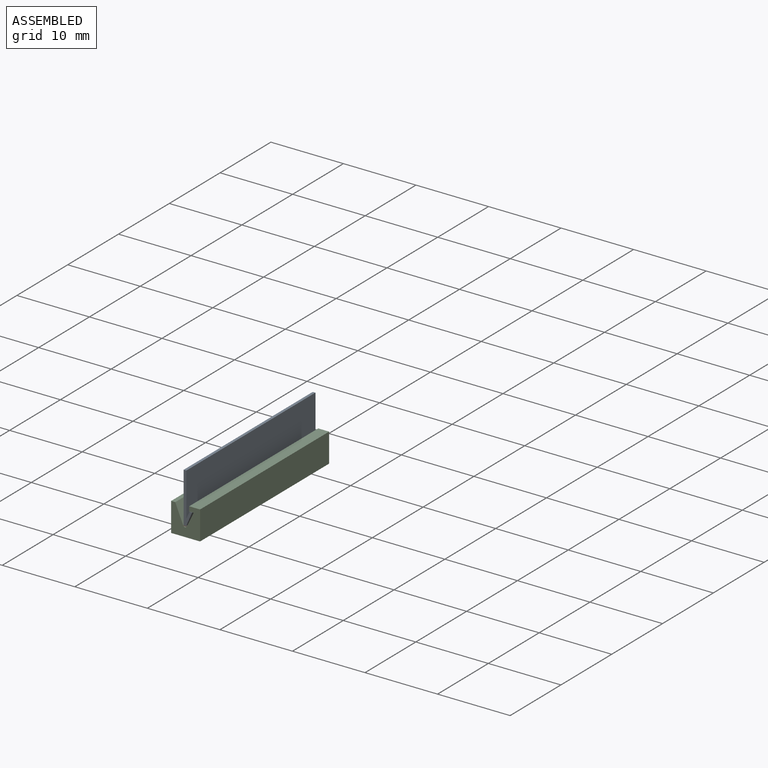
[diagram: assembled view]
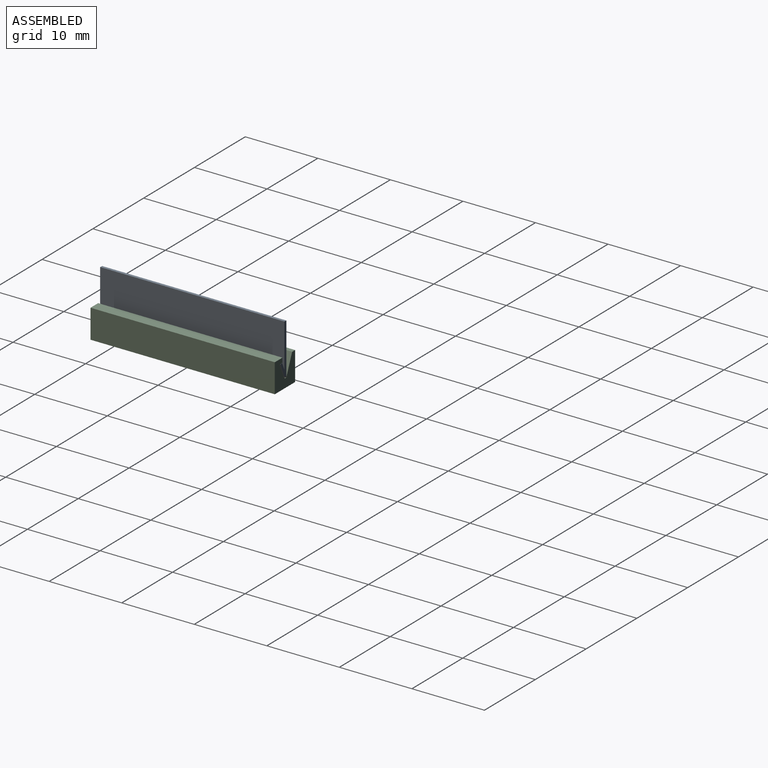
[diagram: assembled view, second angle]
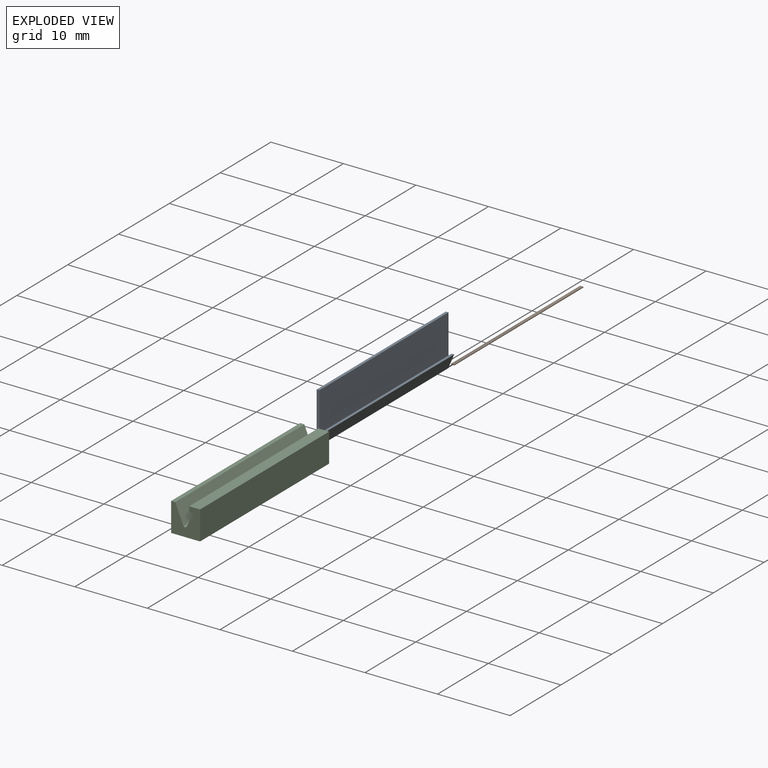
[diagram: exploded view]
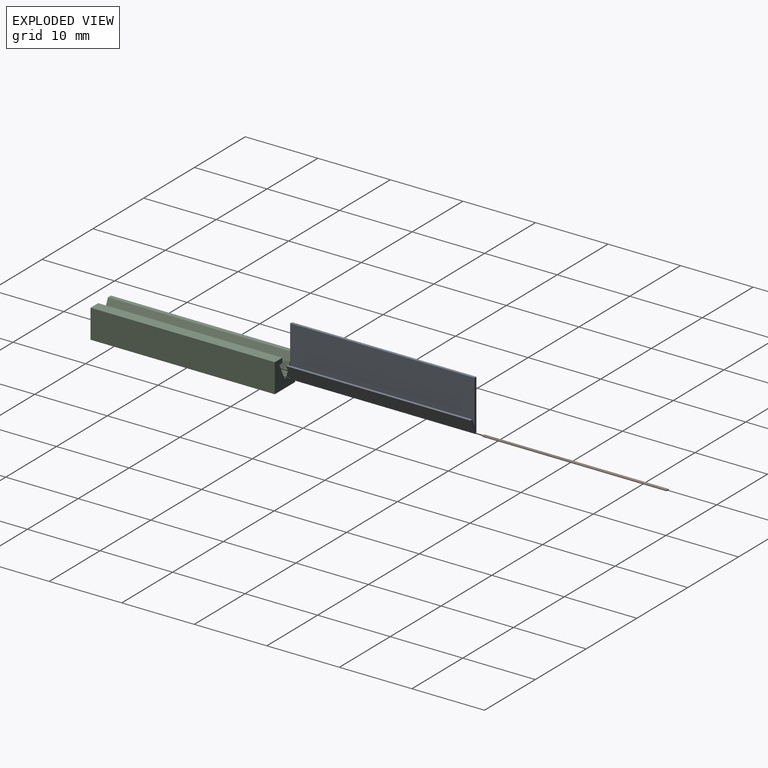
[diagram: exploded view, second angle]
ASSEMBLY  parts=3 mates=2
PART A: 9 faces, bbox 1.2x25.4x7 mm
  f0: plane 25.4x1.84mm, normal (0.92,0,-0.39), area 50.8mm2, adj f1,f6,f7,f8
  f1: plane 25.4x0.36mm, normal (0,0,1), area 9.3mm2, adj f0,f2,f7,f8
  f2: plane 25.4x0.96mm, normal (-0.92,0,0.4), area 26.7mm2, adj f1,f3,f7,f8
  f3: plane 25.4x5.99mm, normal (1,0,0), area 152.3mm2, adj f2,f4,f7,f8
  f4: plane 25.4x0.39mm, normal (-0.04,0,1), area 9.9mm2, adj f3,f5,f7,f8
  f5: plane 25.4x6.83mm, normal (-1,0,0), area 173.6mm2, adj f4,f6,f7,f8
  f6: cylinder r=0.2mm len=25.4mm, axis (0,1,0), area 15.1mm2, adj f0,f5,f7,f8
  f7: plane 7.05x1.18mm, normal (0,-1,0), area 3.3mm2, adj f0,f1,f2,f3,f4,f5,f6
  f8: plane 7.05x1.18mm, normal (0,1,0), area 3.3mm2, adj f0,f1,f2,f3,f4,f5,f6
PART B: 6 faces, bbox 0.4x25.4x0.1 mm
  f0: plane 25.4x0.43mm, normal (0,0,-1), area 11mm2, adj f1,f3,f4,f5
  f1: cylinder r=0.28mm len=25.4mm, axis (0,1,0), area 3.3mm2, adj f0,f2,f4,f5
  f2: plane 25.4x0.43mm, normal (0,0,1), area 11mm2, adj f1,f3,f4,f5
  f3: cylinder r=0.28mm len=25.4mm, axis (0,1,0), area 3.3mm2, adj f0,f2,f4,f5
  f4: plane 0.45x0.13mm, normal (0,-1,0), area 0.1mm2, adj f0,f1,f2,f3
  f5: plane 0.45x0.13mm, normal (0,1,0), area 0.1mm2, adj f0,f1,f2,f3
PART C: 12 faces, bbox 4x25.4x4 mm
  f0: plane 25.4x0.62mm, normal (0,0,-1), area 15.8mm2, adj f1,f9,f10,f11
  f1: plane 25.4x1.96mm, normal (-0.9,0,0.44), area 55.3mm2, adj f0,f2,f10,f11
  f2: cylinder r=0.27mm len=25.4mm, axis (0,1,0), area 16mm2, adj f1,f3,f10,f11
  f3: plane 25.4x2.61mm, normal (0.92,0,0.39), area 71.7mm2, adj f2,f4,f10,f11
  f4: plane 25.4x0.57mm, normal (0,0,1), area 14.5mm2, adj f3,f5,f10,f11
  f5: plane 25.4x3.99mm, normal (-1,0,0), area 101.3mm2, adj f4,f6,f10,f11
  f6: plane 25.4x3.99mm, normal (0,0,-1), area 101.3mm2, adj f5,f7,f10,f11
  f7: plane 25.4x3.99mm, normal (1,0,0), area 101.3mm2, adj f6,f8,f10,f11
  f8: plane 25.4x1.5mm, normal (0,0,1), area 38.1mm2, adj f7,f9,f10,f11
  f9: plane 25.4x0.66mm, normal (-1,0,0), area 16.7mm2, adj f0,f8,f10,f11
  f10: plane 3.99x3.99mm, normal (0,-1,0), area 12mm2, adj f0,f1,f2,f3,f4,f5,f6,f7
  f11: plane 3.99x3.99mm, normal (0,1,0), area 12mm2, adj f0,f1,f2,f3,f4,f5,f6,f7
PLACE A t=(3.27,12.7,-2.14)mm
PLACE B t=(3.08,12.7,-3.13)mm
PLACE C t=(3.09,12.7,-3.5)mm
MATE fastened C.f2 <-> B.f4  axis (0,1,0) through (3.08,-12.7,-3)mm
MATE fastened A.f6 <-> C.f2  axis (0,-1,0) through (3.08,-12.7,-3)mm
